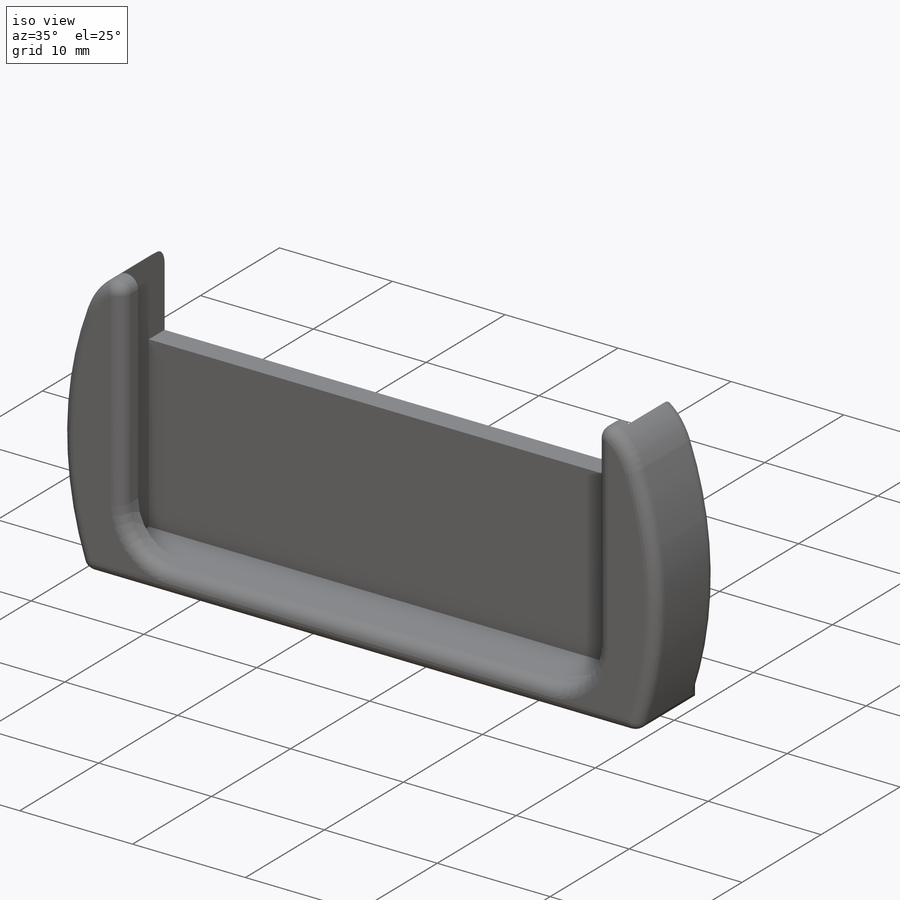
[diagram: iso view]
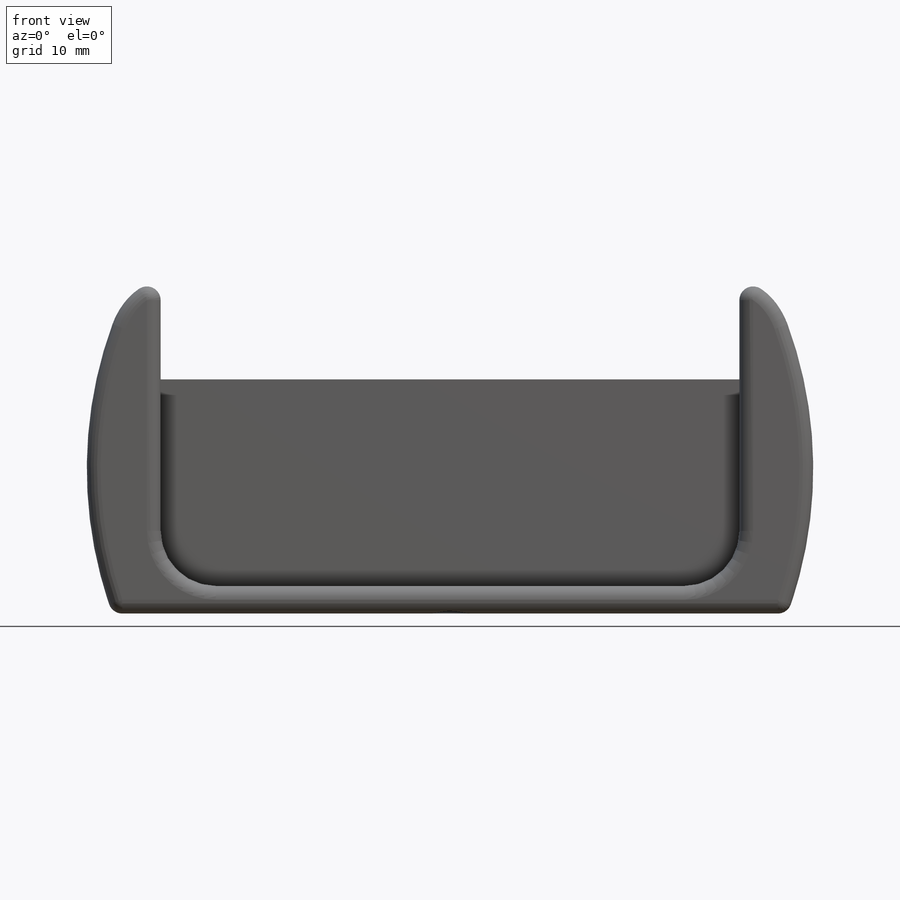
[diagram: front view]
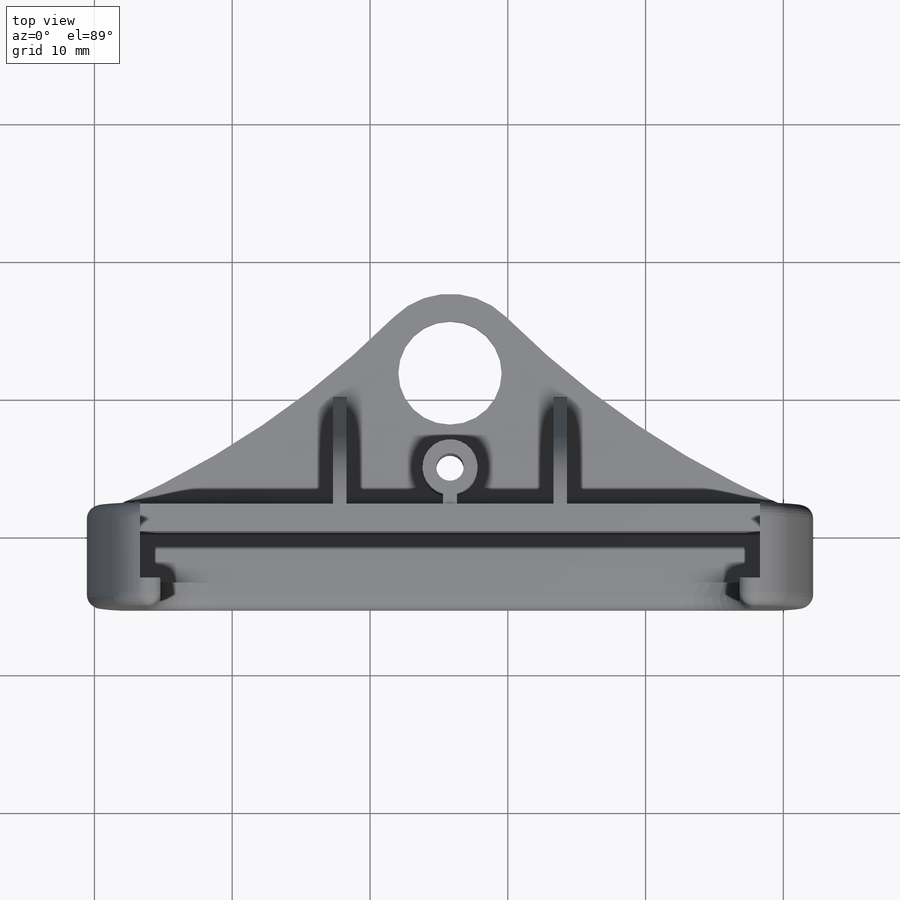
[diagram: top view]
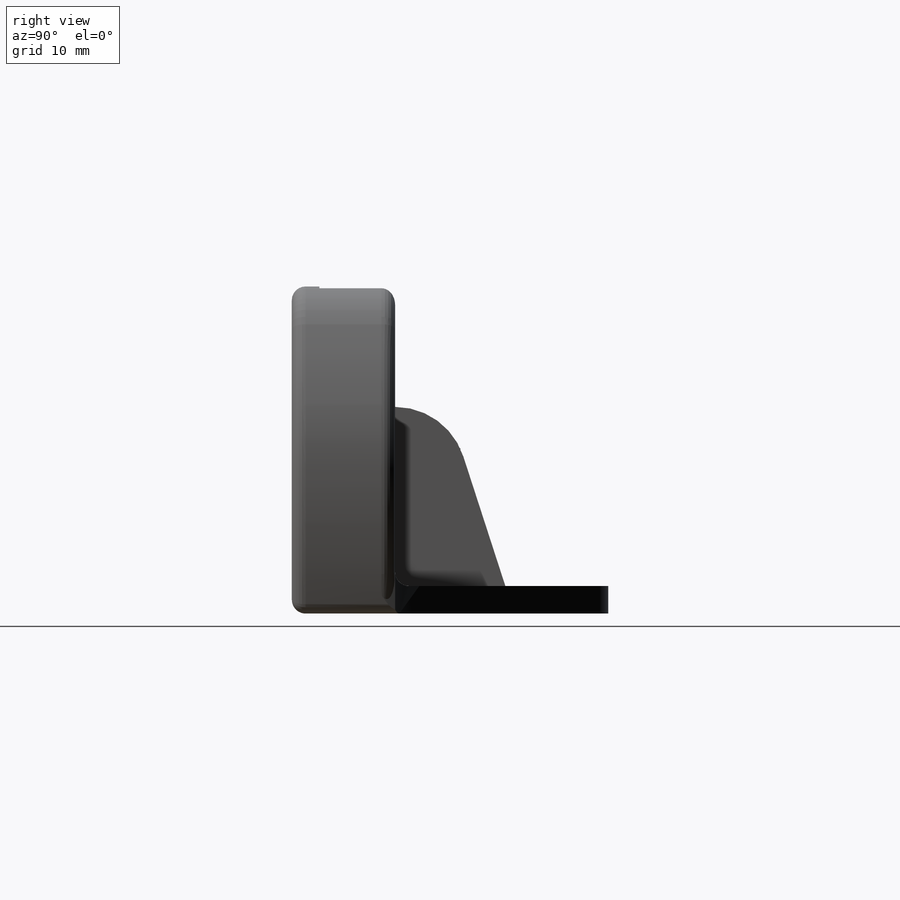
[diagram: right view]
SOLIDWORKS PART (.sldprt)
format: sldprt  version: not decoded by parser v0  size: 699,904 bytes
history: native  units: mm
features: sketch x22, cut_extrude x12, extrude x9, fillet x7, material x1 (+12 scaffold rows collapsed)
feature tree (63):
  scaffold x12  (default folders/planes/origin — collapsed)
  material  "ABS"
  sketch  "Sketch1"  dims[D1=49.0mm D2=23.0mm]
  extrude  "Boss-Extrude1"  Depth=2mm
  sketch  "Sketch2"  dims[c1.D1=2.0mm c1.D2=1.2mm c2.D1=7.5mm]
  extrude  "Boss-Extrude2"  Depth=19mm
  sketch  "Sketch4"
  cut_extrude  "Cut-Extrude2"  [1 undecoded]
  sketch  "Sketch5"  dims[c1.D1=4.0mm c1.D2=4.0mm c1.D3=2.0mm c2.D1=42.0mm c2.D2=4.0mm]
  cut_extrude  "Cut-Extrude3"  [1 undecoded]
  sketch  "Sketch7"
  extrude  "Boss-Extrude3"  [1 undecoded]
  sketch  "Sketch6"  dims[c1.D1=2.0mm c1.D2=2.0mm c1.D3=1.2mm c1.D4=2.0mm c1.D5=2.0mm c2.D1=45.0mm c2.D2=2.8mm c2.D3=2.0mm]
  cut_extrude  "Cut-Extrude4"  [1 undecoded]
  sketch  "Sketch8"  dims[c1.D1=7.5mm c1.D2=7.5mm c1.D9=2.0mm c2.D2=2.0mm c2.D3=15.5mm c2.D4=7.0mm c2.D5=4.4mm c2.D6=2.0mm c2.D7=2.0mm c2.D8=2.0mm c2.D10=7.0mm]
  sketch  "Sketch9"  dims[D1=45.0mm]
  cut_extrude  "Cut-Extrude6"  [1 undecoded]
  fillet  "Fillet4"  Radius=1mm
  fillet  "Fillet3"  Radius=1mm
  extrude  "Boss-Extrude8"  [1 undecoded]
  sketch  "Sketch8<4>"  dims[D1=10.0mm]
  cut_extrude  "Cut-Extrude13"  [1 undecoded]
  sketch  "Sketch8<7>"  dims[D1=2.0mm]
  fillet  "Fillet6"  Radius=1mm
  sketch  "Sketch22"
  extrude  "Boss-Extrude9"  [1 undecoded]
  fillet  "Fillet9"  Radius=2mm
  cut_extrude  "Cut-Extrude15"  [1 undecoded]
  sketch  "Sketch8<9>"  dims[D1=53.0mm]
  sketch  "Sketch26"  dims[D1=2.0mm D2=10.0mm D3=3.5mm]
  extrude  "Boss-Extrude13"  Depth=15mm
  sketch  "Sketch28"  dims[D1=1.0mm D2=8.0mm D3=10.0mm]
  extrude  "Boss-Extrude14"  [1 undecoded]
  sketch  "Sketch29"  dims[D1=1.0mm]
  cut_extrude  "Cut-Extrude17"  [1 undecoded]
  sketch  "Sketch30"  dims[D1=0.0mm]
  cut_extrude  "Cut-Extrude18"  [1 undecoded]
  sketch  "Sketch8<10>"  dims[D1=1.0mm]
  fillet  "Fillet12"  Radius=1mm
  fillet  "Fillet13"  Radius=1mm
  fillet  "Fillet15"  Radius=1mm
  cut_extrude  "Cut-Extrude19"  [1 undecoded]
  sketch  "Sketch33"  dims[D1=1.0mm D2=1.0mm]
  cut_extrude  "Cut-Extrude20"  Depth=4mm
  sketch  "Sketch34"  dims[D1=2.0mm]
  cut_extrude  "Cut-Extrude21"  Depth=4mm
  sketch  "Sketch35"  dims[D1=8.0mm D2=1.0mm D3=8.0mm]
  extrude  "Boss-Extrude15"  [1 undecoded]
  sketch  "Sketch36"  dims[D1=2.0mm]
  cut_extrude  "Cut-Extrude22"  [1 undecoded]
  extrude  "Boss-Extrude16"  [1 undecoded]
  sketch  "Sketch33<2>"  dims[D1=10.0mm]
decode coverage: 31 of 50 modeling features carry decoded parameters
note: 16 parameter values undecoded
summary: no parameter record found for 16 features
note: suppression state not decoded; provenance and decode notes live in map.json
